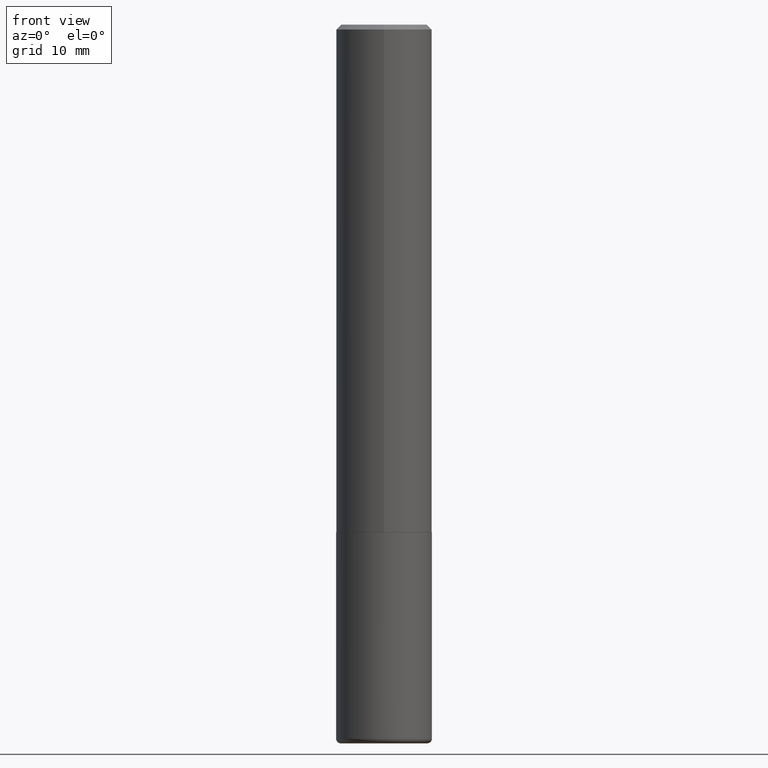
[diagram: clean part render]
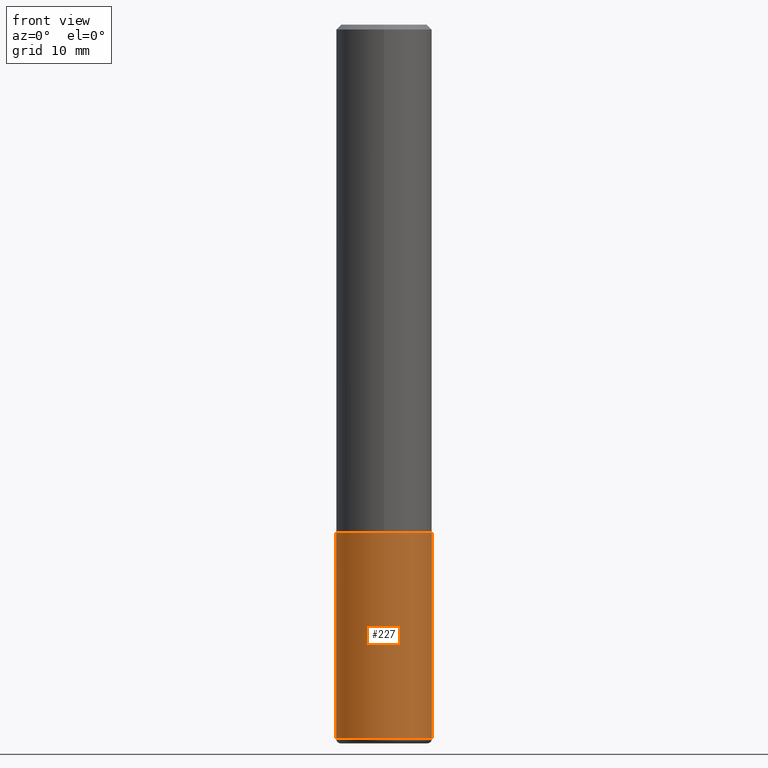
[diagram: same view with one face highlighted and labeled with its STEP entity id]
A machine part, front view. The second image highlights one B-rep face of the part: STEP entity #227.
In plain terms, the highlighted cylindrical surface (partial cylindrical patch) has radius 5 mm, axis along (-0, 0, 1).
Its self-contained STEP definition (entity closure, byte-faithful):
#4 = VERTEX_POINT ( 'NONE', #365 ) ;
#9 = CARTESIAN_POINT ( 'NONE',  ( 7.172804555421624566E-29, -1.024086391496083050E-14, -2.933100000000000041 ) ) ;
#21 = VERTEX_POINT ( 'NONE', #232 ) ;
#25 = FACE_OUTER_BOUND ( 'NONE', #65, .T. ) ;
#37 = DIRECTION ( 'NONE',  ( 1.000000000000000000, -6.982962677686269866E-15, 0.000000000000000000 ) ) ;
#39 = LINE ( 'NONE', #247, #155 ) ;
#41 = CIRCLE ( 'NONE', #217, 0.1968500000000000250 ) ;
#55 = CARTESIAN_POINT ( 'NONE',  ( 0.1968499999999999417, -1.161546011806337053E-14, -2.933100000000000041 ) ) ;
#65 = EDGE_LOOP ( 'NONE', ( #101, #229, #332, #293 ) ) ;
#73 = VERTEX_POINT ( 'NONE', #88 ) ;
#88 = CARTESIAN_POINT ( 'NONE',  ( 0.1968500000000000250, -8.660270312866532536E-15, -2.086699999999999999 ) ) ;
#91 = DIRECTION ( 'NONE',  ( 1.000000000000000000, -6.982962677686266711E-15, 4.876176775795935793E-29 ) ) ;
#92 = EDGE_CURVE ( 'NONE', #4, #73, #41, .T. ) ;
#94 = DIRECTION ( 'NONE',  ( -2.445468806185136877E-29, 3.491481338843145188E-15, 1.000000000000000000 ) ) ;
#97 = EDGE_CURVE ( 'NONE', #164, #73, #39, .T. ) ;
#101 = ORIENTED_EDGE ( 'NONE', *, *, #173, .F. ) ;
#106 = AXIS2_PLACEMENT_3D ( 'NONE', #9, #262, #37 ) ;
#116 = CARTESIAN_POINT ( 'NONE',  ( 5.102959757866523939E-29, -7.285674109763990928E-15, -2.086699999999999999 ) ) ;
#155 = VECTOR ( 'NONE', #346, 39.37007874015748143 ) ;
#164 = VERTEX_POINT ( 'NONE', #55 ) ;
#173 = EDGE_CURVE ( 'NONE', #21, #4, #288, .T. ) ;
#195 = CIRCLE ( 'NONE', #106, 0.1968499999999999694 ) ;
#209 = DIRECTION ( 'NONE',  ( 1.000000000000000000, -6.982962677686267499E-15, 0.000000000000000000 ) ) ;
#217 = AXIS2_PLACEMENT_3D ( 'NONE', #116, #335, #209 ) ;
#227 = ADVANCED_FACE ( 'NONE', ( #25 ), #351, .T. ) ;
#229 = ORIENTED_EDGE ( 'NONE', *, *, #334, .T. ) ;
#232 = CARTESIAN_POINT ( 'NONE',  ( -0.1968499999999999417, -8.842160539617071922E-15, -2.933100000000000041 ) ) ;
#247 = CARTESIAN_POINT ( 'NONE',  ( 0.1968499999999999694, -1.374596203102541411E-15, 9.598753983154298056E-30 ) ) ;
#262 = DIRECTION ( 'NONE',  ( -2.445468806185136597E-29, 3.491481338843145583E-15, 1.000000000000000000 ) ) ;
#284 = AXIS2_PLACEMENT_3D ( 'NONE', #386, #318, #91 ) ;
#288 = LINE ( 'NONE', #350, #393 ) ;
#293 = ORIENTED_EDGE ( 'NONE', *, *, #92, .F. ) ;
#318 = DIRECTION ( 'NONE',  ( -2.445468806185136597E-29, 3.491481338843145583E-15, 1.000000000000000000 ) ) ;
#332 = ORIENTED_EDGE ( 'NONE', *, *, #97, .T. ) ;
#334 = EDGE_CURVE ( 'NONE', #21, #164, #195, .T. ) ;
#335 = DIRECTION ( 'NONE',  ( -2.445468806185136597E-29, 3.491481338843145583E-15, 1.000000000000000000 ) ) ;
#346 = DIRECTION ( 'NONE',  ( -2.445468806185136877E-29, 3.491481338843145188E-15, 1.000000000000000000 ) ) ;
#350 = CARTESIAN_POINT ( 'NONE',  ( -0.1968499999999999694, 1.398703375343756999E-15, -9.682923725166782276E-30 ) ) ;
#351 = CYLINDRICAL_SURFACE ( 'NONE', #284, 0.1968499999999999694 ) ;
#365 = CARTESIAN_POINT ( 'NONE',  ( -0.1968500000000000250, -7.364565637018652926E-15, -2.086699999999999999 ) ) ;
#386 = CARTESIAN_POINT ( 'NONE',  ( 0.000000000000000000, 0.000000000000000000, 0.000000000000000000 ) ) ;
#393 = VECTOR ( 'NONE', #94, 39.37007874015748143 ) ;